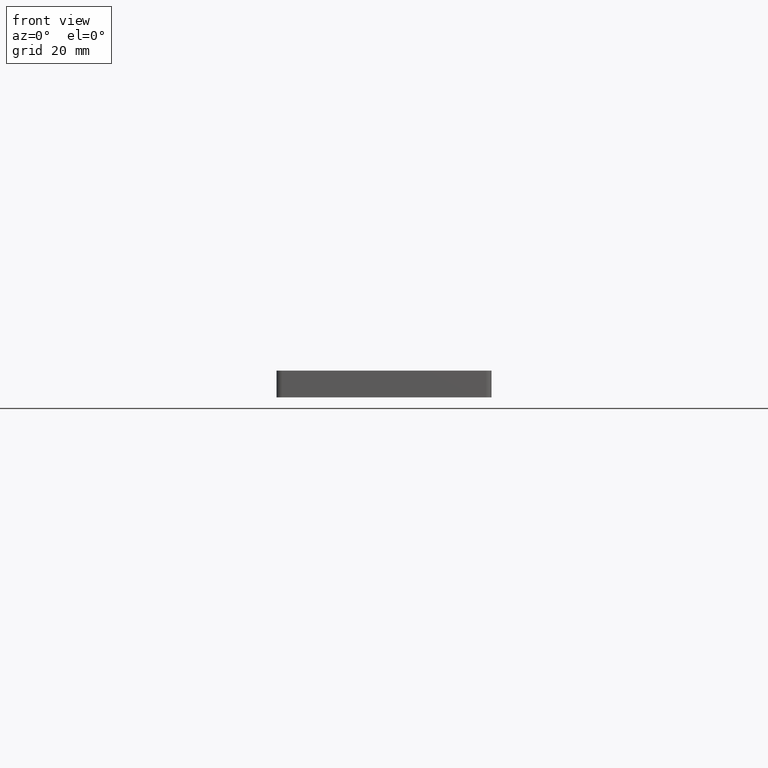
[diagram: clean part render]
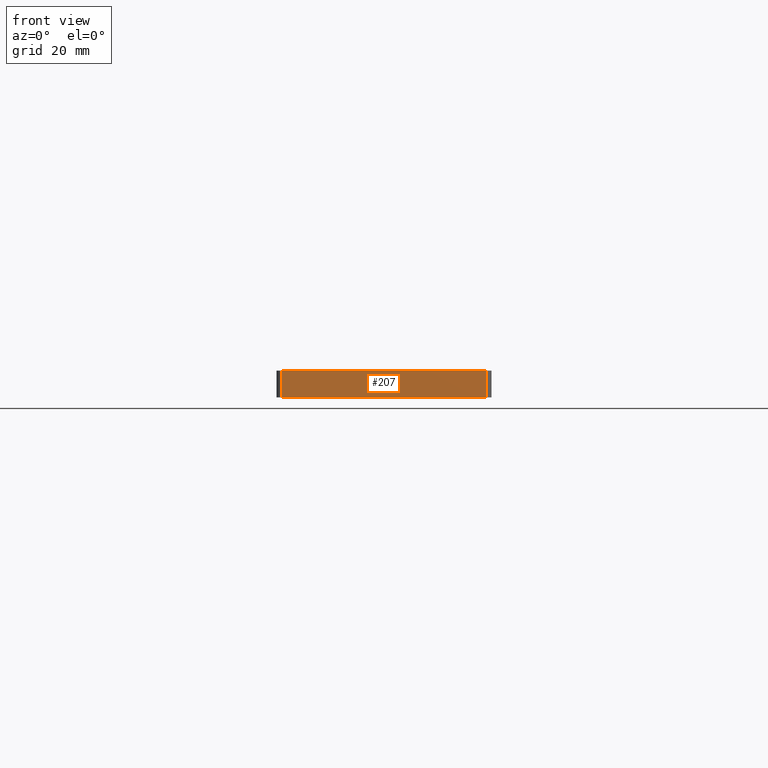
[diagram: same view with one face highlighted and labeled with its STEP entity id]
A machine part, front view. The second image highlights one B-rep face of the part: STEP entity #207.
In plain terms, the highlighted planar face has unit normal (0, -1, 0).
Its self-contained STEP definition (entity closure, byte-faithful):
#168=CARTESIAN_POINT('',(-20.900000000000006,0.0,5.250000000000000));
#169=DIRECTION('',(0.0,-1.0,0.0));
#170=DIRECTION('',(0.0,0.0,-1.0));
#171=AXIS2_PLACEMENT_3D('',#168,#169,#170);
#172=PLANE('',#171);
#173=CARTESIAN_POINT('',(-19.0,0.0,0.0));
#174=VERTEX_POINT('',#173);
#175=CARTESIAN_POINT('',(19.000000000000014,0.0,0.0));
#176=VERTEX_POINT('',#175);
#177=CARTESIAN_POINT('',(-19.0,0.0,0.0));
#178=DIRECTION('',(1.0,0.0,0.0));
#179=VECTOR('',#178,38.000000000000014);
#180=LINE('',#177,#179);
#181=EDGE_CURVE('',#174,#176,#180,.T.);
#182=ORIENTED_EDGE('',*,*,#181,.T.);
#183=CARTESIAN_POINT('',(19.000000000000014,0.0,5.0));
#184=VERTEX_POINT('',#183);
#185=CARTESIAN_POINT('',(19.000000000000014,0.0,0.0));
#186=DIRECTION('',(0.0,0.0,1.0));
#187=VECTOR('',#186,5.0);
#188=LINE('',#185,#187);
#189=EDGE_CURVE('',#176,#184,#188,.T.);
#190=ORIENTED_EDGE('',*,*,#189,.T.);
#191=CARTESIAN_POINT('',(-19.0,0.0,5.0));
#192=VERTEX_POINT('',#191);
#193=CARTESIAN_POINT('',(-19.0,0.0,5.0));
#194=DIRECTION('',(1.0,0.0,0.0));
#195=VECTOR('',#194,38.000000000000014);
#196=LINE('',#193,#195);
#197=EDGE_CURVE('',#192,#184,#196,.T.);
#198=ORIENTED_EDGE('',*,*,#197,.F.);
#199=CARTESIAN_POINT('',(-19.0,0.0,5.0));
#200=DIRECTION('',(0.0,0.0,-1.0));
#201=VECTOR('',#200,5.0);
#202=LINE('',#199,#201);
#203=EDGE_CURVE('',#192,#174,#202,.T.);
#204=ORIENTED_EDGE('',*,*,#203,.T.);
#205=EDGE_LOOP('',(#182,#190,#198,#204));
#206=FACE_OUTER_BOUND('',#205,.T.);
#207=ADVANCED_FACE('',(#206),#172,.T.);